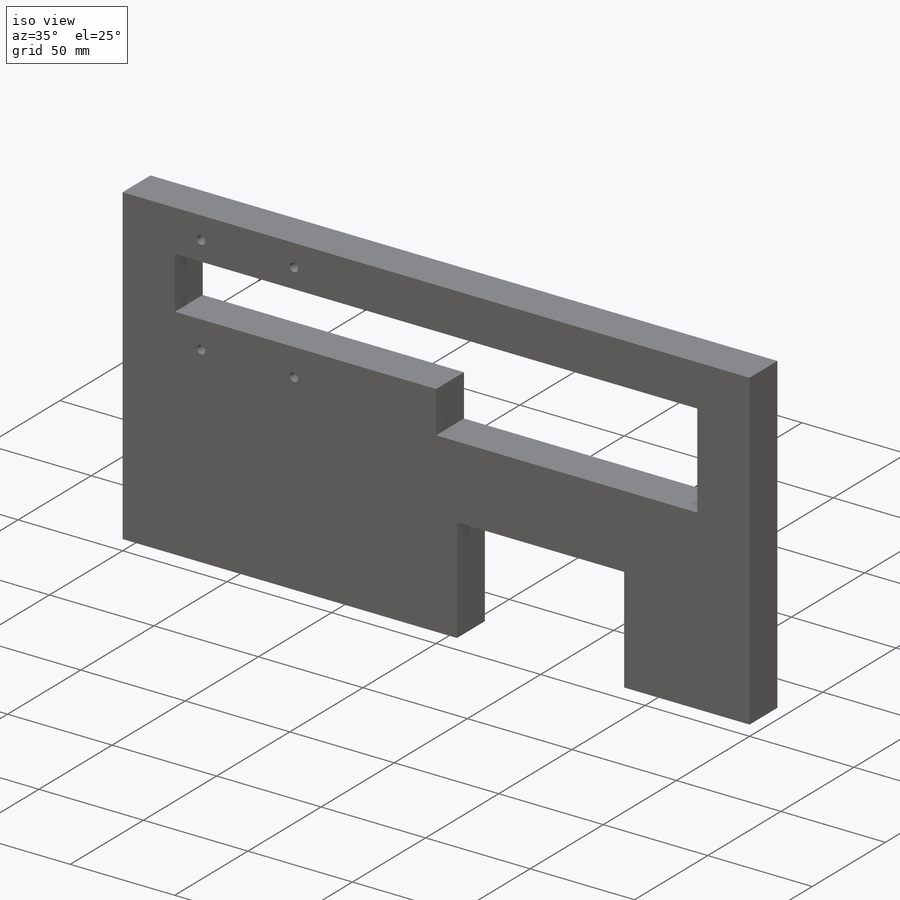
[diagram: iso view]
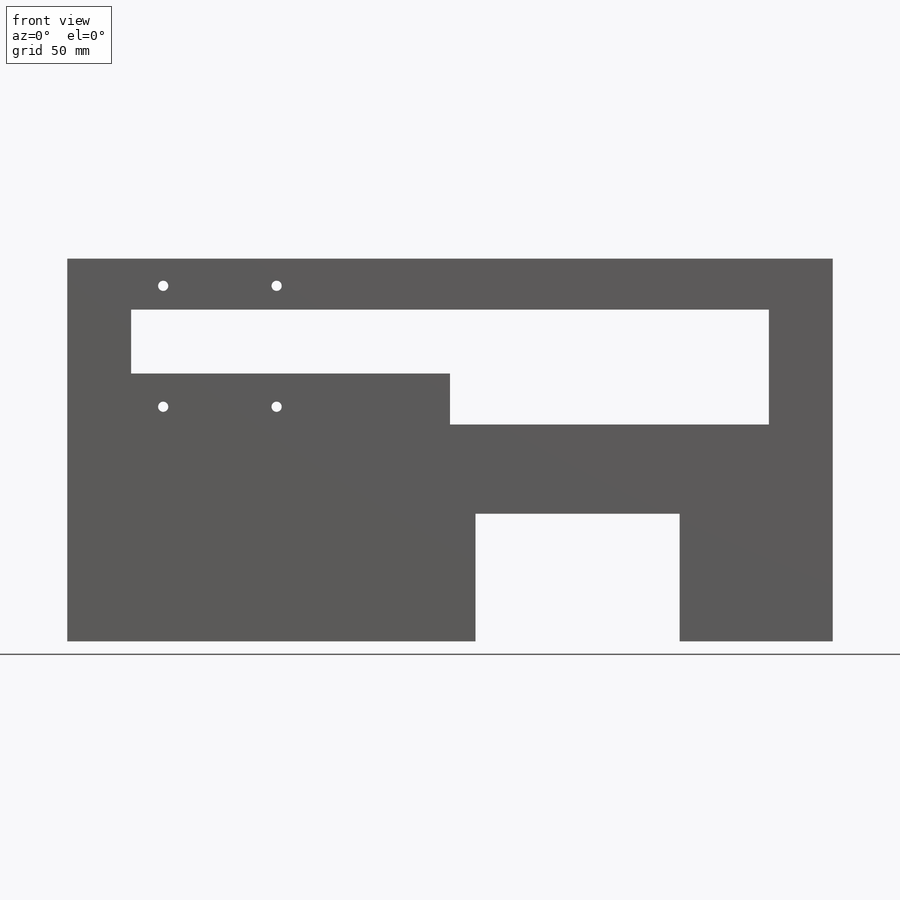
[diagram: front view]
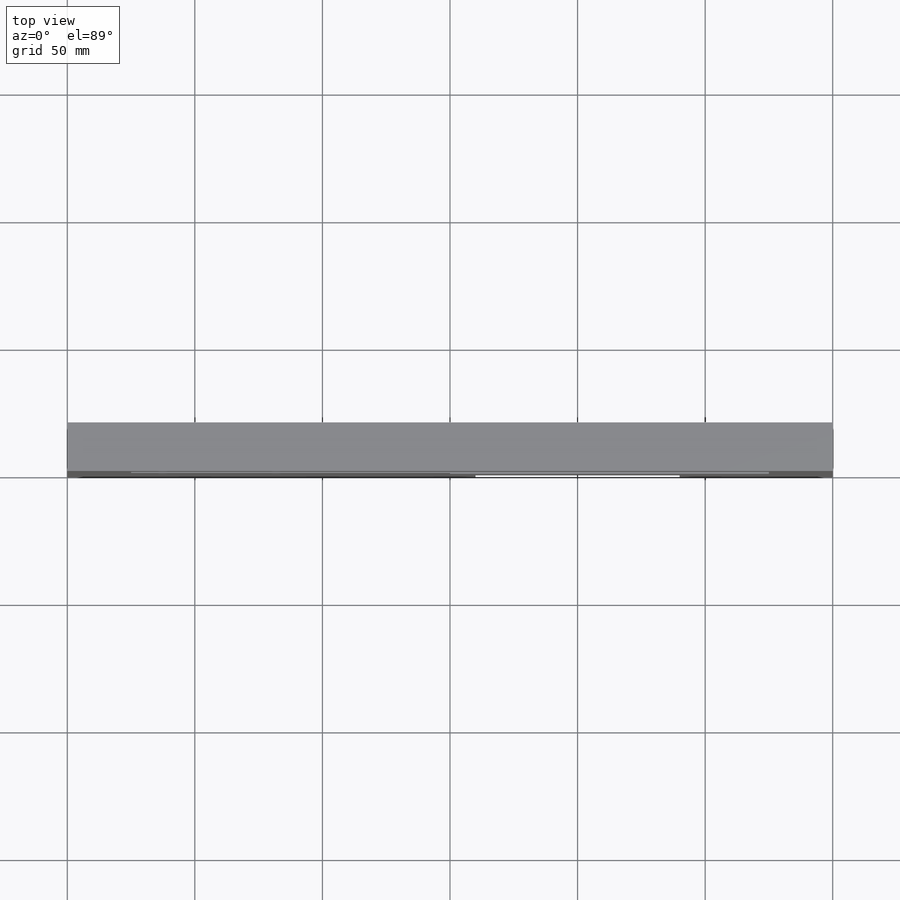
[diagram: top view]
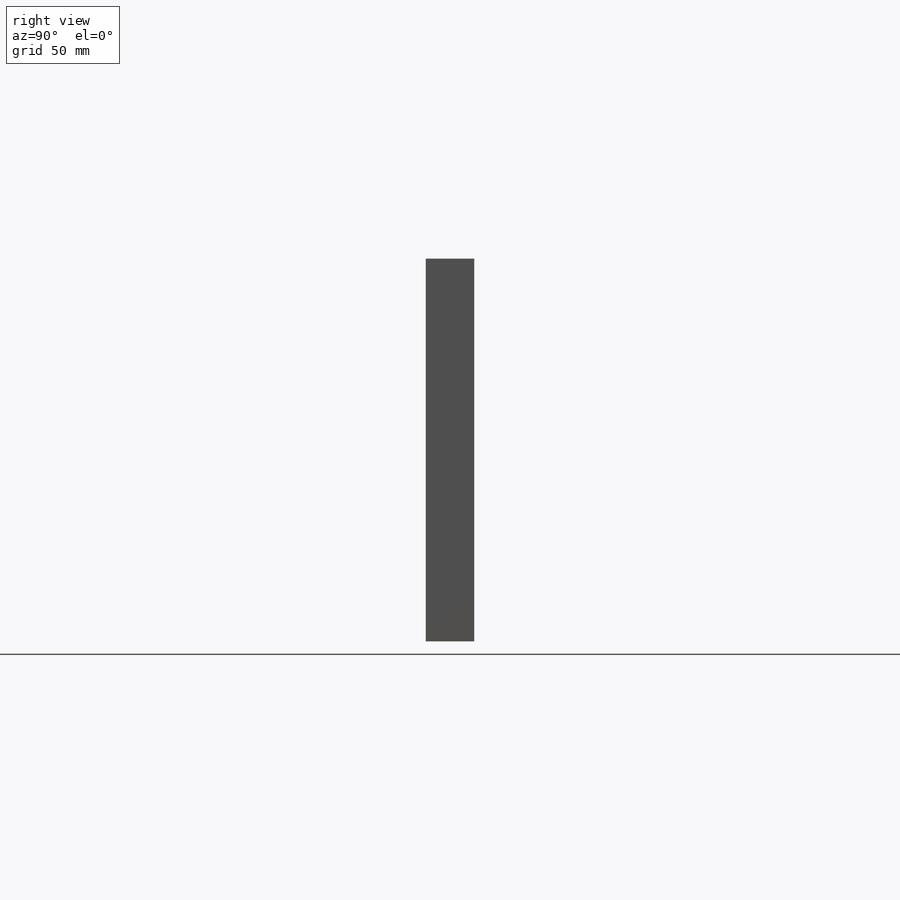
[diagram: right view]
SOLIDWORKS PART (.sldprt)
format: sldprt  version: not decoded by parser v0  size: 212,992 bytes
history: native  units: mm
features: sketch x5, cut_extrude x4, material x1, extrude x1 + 1 further entry (+10 scaffold rows collapsed)
feature tree (22):
  scaffold x10  (default folders/planes/origin — collapsed)
  material  "Material <not specified>"
  "Annotations"  RD1=150mm
  sketch  "Sketch1"  dims[D1=300.0mm D2=150.0mm D3=~59.380574mm D4=~82.571034mm]
  extrude  "block"  Depth=19.05mm
  sketch  "Sketch3"  dims[D1=25.0mm D2=250.0mm D3=25.0mm D4=20.0mm]
  cut_extrude  "Cut-Extrude2"  [1 undecoded]
  sketch  "Sketch6"  dims[D1=20.0mm D2=125.0mm]
  cut_extrude  "Cut-Extrude5"  [1 undecoded]
  sketch  "Sketch7"  dims[D1=80.0mm D2=50.0mm D3=60.0mm]
  cut_extrude  "Cut-Extrude6"  [1 undecoded]
  sketch  "Sketch8"
  cut_extrude  "Cut-Extrude7"  [1 undecoded]
decode coverage: 5 of 10 modeling features carry decoded parameters; 1 rows unclassified (native names shown)
note: ~ marks probable driven/reference dimensions
note: 4 parameter values undecoded
summary: no parameter record found for 4 features
note: suppression state not decoded; provenance and decode notes live in map.json
